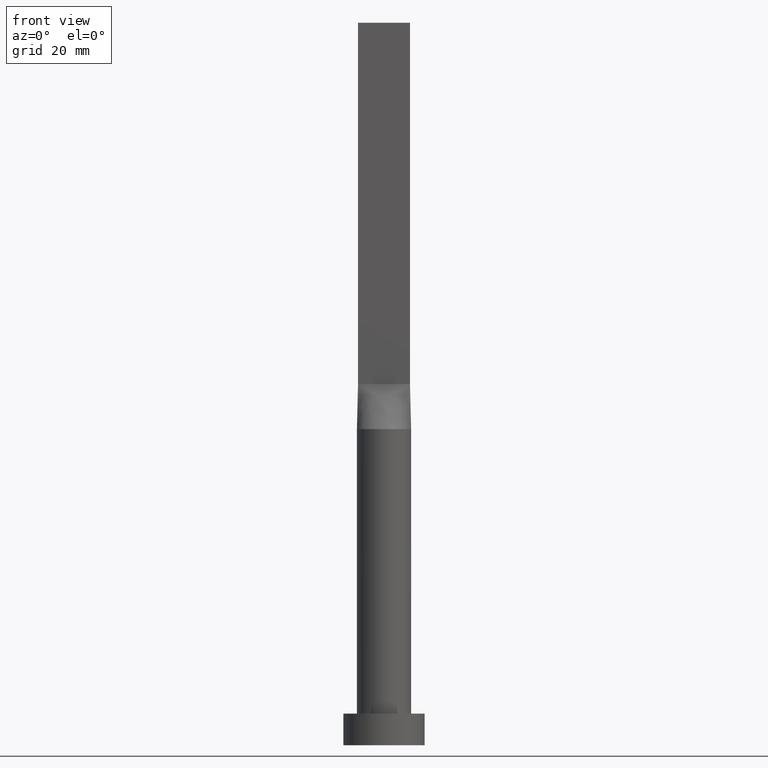
[diagram: clean part render]
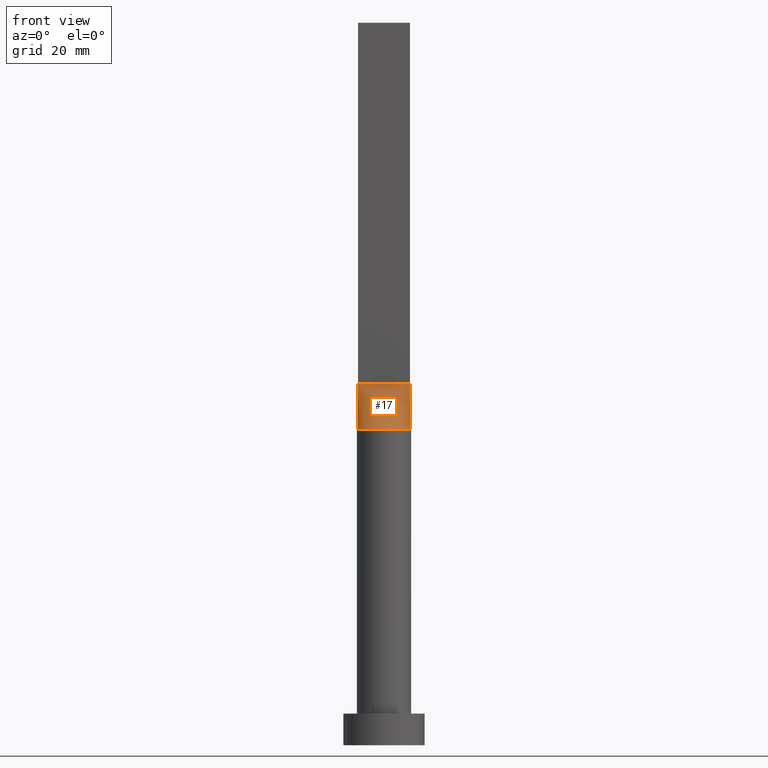
[diagram: same view with one face highlighted and labeled with its STEP entity id]
A machine part, front view. The second image highlights one B-rep face of the part: STEP entity #17.
In plain terms, the highlighted face is a freeform B-spline surface patch.
Its self-contained STEP definition (entity closure, byte-faithful):
#2 = CARTESIAN_POINT ( 'NONE',  ( 1.197916666666666075, -1.249999999999999778, 79.99999999999998579 ) ) ;
#5 = CARTESIAN_POINT ( 'NONE',  ( -3.660567483996338911, -4.804269179125217448, 70.00000000000001421 ) ) ;
#7 = DIRECTION ( 'NONE',  ( -0.01130506171853812650, -0.002457622112725682973, -0.9999330755971076456 ) ) ;
#16 = CARTESIAN_POINT ( 'NONE',  ( -1.966519853258819506, -5.681792876789066860, 70.00000000000002842 ) ) ;
#17 = ADVANCED_FACE ( 'NONE', ( #239 ), #372, .T. ) ;
#52 = CARTESIAN_POINT ( 'NONE',  ( 0.8058840496048923496, -5.959001506938069070, 70.00000000000000000 ) ) ;
#56 = CARTESIAN_POINT ( 'NONE',  ( 3.660567483996338023, -4.804269179125219225, 70.00000000000001421 ) ) ;
#59 = CARTESIAN_POINT ( 'NONE',  ( 1.587717880441006368, -5.799853445840308375, 69.99999999999998579 ) ) ;
#62 = CARTESIAN_POINT ( 'NONE',  ( 0.4029827085191214908, -6.000000000000000888, 70.00000000000000000 ) ) ;
#95 = AXIS2_PLACEMENT_3D ( 'NONE', #149, #485, #109 ) ;
#96 = CARTESIAN_POINT ( 'NONE',  ( -0.9583333333333331483, -1.249999999999999334, 79.99999999999998579 ) ) ;
#100 = CARTESIAN_POINT ( 'NONE',  ( -5.038190104264876013, -3.311355329404291670, 70.00000000000002842 ) ) ;
#108 = CARTESIAN_POINT ( 'NONE',  ( -1.197916666666666075, -1.249999999999999334, 79.99999999999998579 ) ) ;
#109 = DIRECTION ( 'NONE',  ( 1.000000000000000000, 0.000000000000000000, 0.000000000000000000 ) ) ;
#132 = CARTESIAN_POINT ( 'NONE',  ( 5.863058287509796074, -1.274577880478293901, 70.00000000000000000 ) ) ;
#144 = CARTESIAN_POINT ( 'NONE',  ( 3.833333333333331705, -1.249999999999999778, 79.99999999999998579 ) ) ;
#146 = EDGE_CURVE ( 'NONE', #600, #295, #508, .T. ) ;
#147 = CARTESIAN_POINT ( 'NONE',  ( 5.586898165904734093, -2.266054396544146865, 70.00000000000001421 ) ) ;
#148 = CARTESIAN_POINT ( 'NONE',  ( 1.966519853258817729, -5.681792876789067748, 70.00000000000002842 ) ) ;
#149 = CARTESIAN_POINT ( 'NONE',  ( 0.000000000000000000, 0.000000000000000000, 70.00000000000000000 ) ) ;
#151 = CARTESIAN_POINT ( 'NONE',  ( -5.750000000000000000, -1.249999999999999112, 80.00000000000000000 ) ) ;
#155 = CARTESIAN_POINT ( 'NONE',  ( -5.806529091768402928, -1.262288932993130386, 75.00000000000001421 ) ) ;
#158 = CARTESIAN_POINT ( 'NONE',  ( -1.587717880441008589, -5.799853445840304822, 70.00000000000000000 ) ) ;
#168 = CARTESIAN_POINT ( 'NONE',  ( 5.750000000000000000, -1.249999999999999778, 80.00000000000000000 ) ) ;
#170 = ORIENTED_EDGE ( 'NONE', *, *, #194, .F. ) ;
#189 = CARTESIAN_POINT ( 'NONE',  ( -3.354166666666666963, -1.249999999999999112, 79.99999999999998579 ) ) ;
#191 = CARTESIAN_POINT ( 'NONE',  ( 4.659826596530312948, -3.842755878357678512, 69.99999999999998579 ) ) ;
#194 = EDGE_CURVE ( 'NONE', #597, #295, #462, .T. ) ;
#195 = CARTESIAN_POINT ( 'NONE',  ( -4.659826596530313836, -3.842755878357677179, 70.00000000000000000 ) ) ;
#198 = CARTESIAN_POINT ( 'NONE',  ( 5.759267569818393717, -1.752014689090956256, 70.00000000000000000 ) ) ;
#200 = CARTESIAN_POINT ( 'NONE',  ( -0.2395833333333338699, -1.249999999999999556, 79.99999999999998579 ) ) ;
#232 = CARTESIAN_POINT ( 'NONE',  ( -5.270833333333333925, -1.249999999999999112, 80.00000000000000000 ) ) ;
#233 = VECTOR ( 'NONE', #7, 1000.000000000000114 ) ;
#239 = FACE_OUTER_BOUND ( 'NONE', #242, .T. ) ;
#241 = CARTESIAN_POINT ( 'NONE',  ( -4.791666666666666963, -1.249999999999999112, 80.00000000000000000 ) ) ;
#242 = EDGE_LOOP ( 'NONE', ( #337, #412, #170, #274 ) ) ;
#274 = ORIENTED_EDGE ( 'NONE', *, *, #275, .T. ) ;
#275 = EDGE_CURVE ( 'NONE', #597, #393, #338, .T. ) ;
#276 = CARTESIAN_POINT ( 'NONE',  ( 3.354166666666665186, -1.249999999999999778, 79.99999999999998579 ) ) ;
#278 = DIRECTION ( 'NONE',  ( -0.01130506171853803803, 0.002457622112726073286, 0.9999330755971076456 ) ) ;
#279 = CARTESIAN_POINT ( 'NONE',  ( -1.916666666666666075, -1.249999999999999334, 79.99999999999998579 ) ) ;
#282 = CARTESIAN_POINT ( 'NONE',  ( -0.8058840496048947921, -5.959001506938068182, 70.00000000000002842 ) ) ;
#285 = CARTESIAN_POINT ( 'NONE',  ( -0.4791666666666669627, -1.249999999999999334, 79.99999999999998579 ) ) ;
#295 = VERTEX_POINT ( 'NONE', #168 ) ;
#300 = VECTOR ( 'NONE', #562, 1000.000000000000000 ) ;
#317 = CARTESIAN_POINT ( 'NONE',  ( 5.863058183536805856, -1.274577865986266101, 70.00000000000000000 ) ) ;
#318 = CARTESIAN_POINT ( 'NONE',  ( -5.863058183536806744, -1.274577865986261438, 70.00000000000000000 ) ) ;
#320 = CARTESIAN_POINT ( 'NONE',  ( 1.916666666666665408, -1.249999999999999778, 79.99999999999998579 ) ) ;
#325 = CARTESIAN_POINT ( 'NONE',  ( -5.586898165904734093, -2.266054396544145533, 70.00000000000001421 ) ) ;
#333 = VECTOR ( 'NONE', #278, 1000.000000000000114 ) ;
#337 = ORIENTED_EDGE ( 'NONE', *, *, #361, .T. ) ;
#338 = LINE ( 'NONE', #155, #233 ) ;
#349 = CARTESIAN_POINT ( 'NONE',  ( -5.750000000000000000, -1.249999999999999112, 80.00000000000000000 ) ) ;
#361 = EDGE_CURVE ( 'NONE', #393, #600, #465, .T. ) ;
#363 = CARTESIAN_POINT ( 'NONE',  ( -0.4029827085191233227, -6.000000000000000000, 70.00000000000001421 ) ) ;
#370 = CARTESIAN_POINT ( 'NONE',  ( 5.750000000000000000, -1.249999999999999778, 80.00000000000000000 ) ) ;
#372 = B_SPLINE_SURFACE_WITH_KNOTS ( 'NONE', 3, 1, ( 
 ( #318, #151 ),
 ( #566, #232 ),
 ( #325, #241 ),
 ( #100, #527 ),
 ( #195, #189 ),
 ( #5, #563 ),
 ( #428, #279 ),
 ( #16, #108 ),
 ( #158, #96 ),
 ( #282, #285 ),
 ( #363, #200 ),
 ( #62, #421 ),
 ( #52, #518 ),
 ( #59, #477 ),
 ( #148, #2 ),
 ( #525, #320 ),
 ( #56, #561 ),
 ( #191, #276 ),
 ( #378, #144 ),
 ( #147, #468 ),
 ( #198, #472 ),
 ( #317, #370 ) ),
 .UNSPECIFIED., .F., .F., .F.,
 ( 4, 2, 2, 2, 2, 2, 2, 2, 2, 2, 4 ),
 ( 2, 2 ),
 ( 0.000000000000000000, 0.1250000000000000278, 0.2500000000000000555, 0.3750000000000001110, 0.4375000000000000555, 0.5000000000000000000, 0.5625000000000000000, 0.6250000000000000000, 0.7499999999999998890, 0.8750000000000000000, 1.000000000000000000 ),
 ( 0.000000000000000000, 1.000000000000000000 ),
 .UNSPECIFIED. ) ;
#378 = CARTESIAN_POINT ( 'NONE',  ( 5.038190104264874236, -3.311355329404293890, 70.00000000000002842 ) ) ;
#393 = VERTEX_POINT ( 'NONE', #480 ) ;
#406 = CARTESIAN_POINT ( 'NONE',  ( 5.806529091768402928, -1.262288932993132828, 75.00000000000001421 ) ) ;
#412 = ORIENTED_EDGE ( 'NONE', *, *, #146, .T. ) ;
#421 = CARTESIAN_POINT ( 'NONE',  ( 0.2395833333333325932, -1.249999999999999556, 79.99999999999998579 ) ) ;
#428 = CARTESIAN_POINT ( 'NONE',  ( -3.037647739454305551, -5.231880992812856235, 70.00000000000001421 ) ) ;
#462 = LINE ( 'NONE', #512, #300 ) ;
#465 = CIRCLE ( 'NONE', #95, 6.000000000000000888 ) ;
#468 = CARTESIAN_POINT ( 'NONE',  ( 4.791666666666666075, -1.249999999999999778, 79.99999999999998579 ) ) ;
#472 = CARTESIAN_POINT ( 'NONE',  ( 5.270833333333333037, -1.249999999999999778, 79.99999999999998579 ) ) ;
#477 = CARTESIAN_POINT ( 'NONE',  ( 0.9583333333333325932, -1.249999999999999556, 79.99999999999998579 ) ) ;
#480 = CARTESIAN_POINT ( 'NONE',  ( -5.863065408737084816, -1.274579424051652365, 70.00000000000000000 ) ) ;
#485 = DIRECTION ( 'NONE',  ( 0.000000000000000000, 0.000000000000000000, 1.000000000000000000 ) ) ;
#508 = LINE ( 'NONE', #406, #333 ) ;
#512 = CARTESIAN_POINT ( 'NONE',  ( -5.750000000000000000, -1.249999999999999112, 80.00000000000000000 ) ) ;
#518 = CARTESIAN_POINT ( 'NONE',  ( 0.4791666666666659635, -1.249999999999999556, 79.99999999999998579 ) ) ;
#525 = CARTESIAN_POINT ( 'NONE',  ( 3.037647739454303331, -5.231880992812857123, 70.00000000000002842 ) ) ;
#527 = CARTESIAN_POINT ( 'NONE',  ( -3.833333333333333481, -1.249999999999999112, 79.99999999999998579 ) ) ;
#561 = CARTESIAN_POINT ( 'NONE',  ( 2.395833333333331705, -1.249999999999999778, 79.99999999999998579 ) ) ;
#562 = DIRECTION ( 'NONE',  ( 1.000000000000000000, -5.656706986880892860E-17, 0.000000000000000000 ) ) ;
#563 = CARTESIAN_POINT ( 'NONE',  ( -2.395833333333333037, -1.249999999999999112, 79.99999999999998579 ) ) ;
#566 = CARTESIAN_POINT ( 'NONE',  ( -5.759267569818394605, -1.752014689090954480, 69.99999999999998579 ) ) ;
#597 = VERTEX_POINT ( 'NONE', #349 ) ;
#600 = VERTEX_POINT ( 'NONE', #132 ) ;